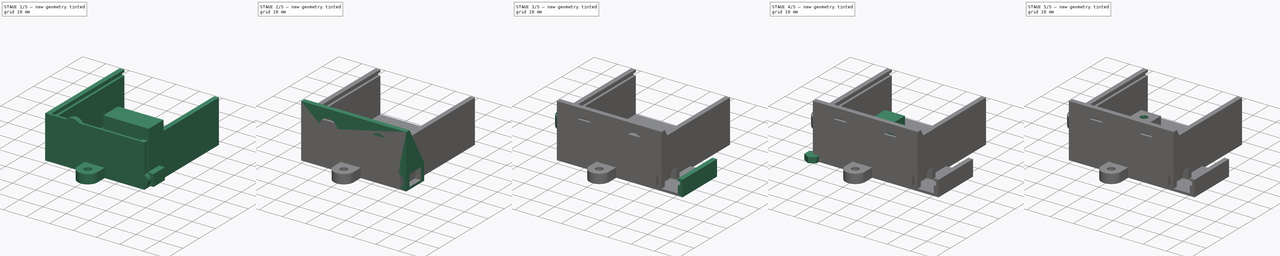
[diagram: build sequence overview — one tinted view per stage of 5, left to right]
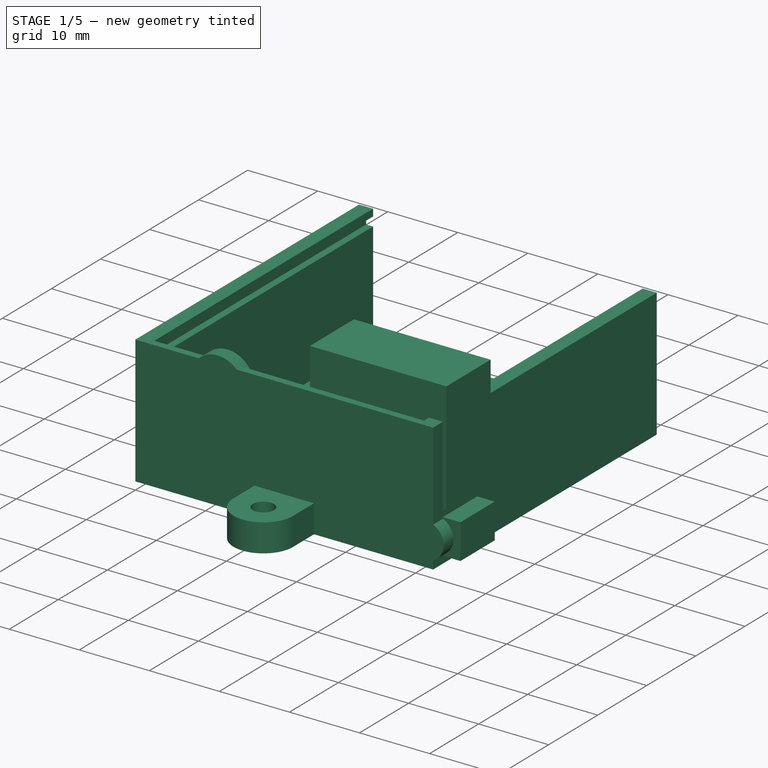
[diagram: stage 1 of 5 — iso view after this stage's code; geometry added in this stage tinted green]
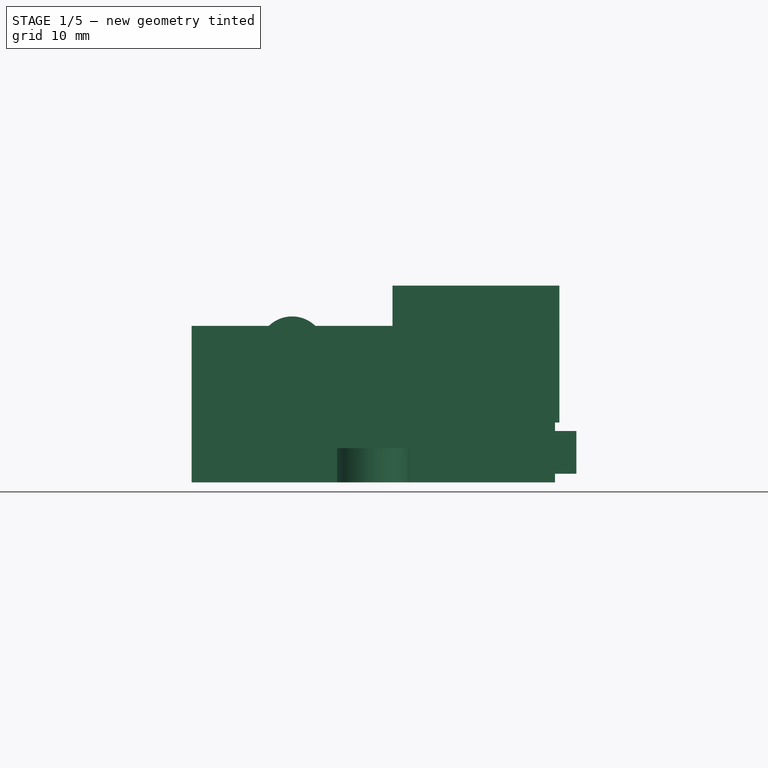
[diagram: stage 1 of 5 — front view after this stage's code; geometry added in this stage tinted green]
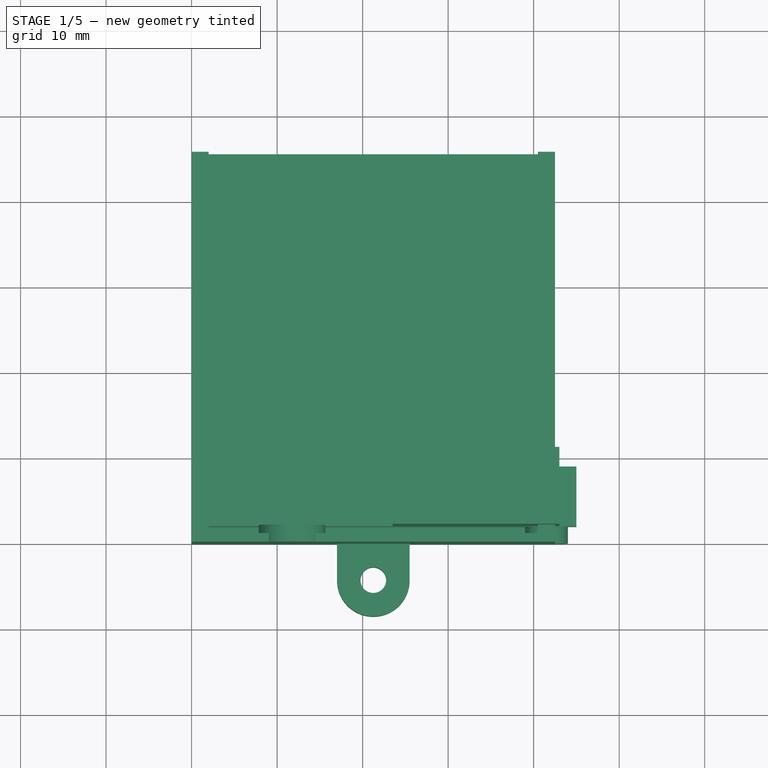
[diagram: stage 1 of 5 — top view after this stage's code; geometry added in this stage tinted green]
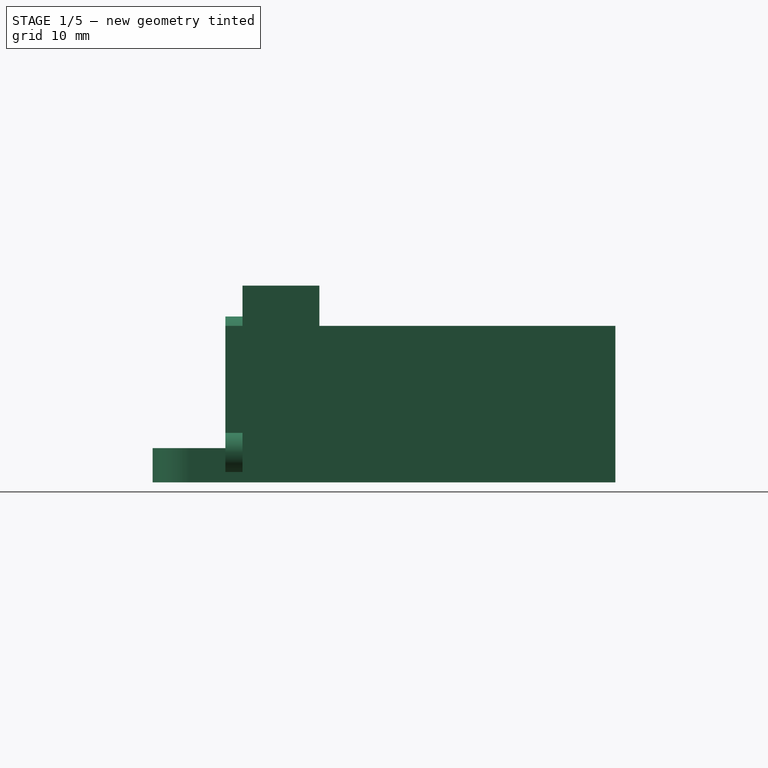
[diagram: stage 1 of 5 — right view after this stage's code; geometry added in this stage tinted green]
FCSTD DOCUMENT  (FreeCAD 0.21R33771 (Git))
Label: main_pcb
License: All rights reserved
LicenseURL: https://en.wikipedia.org/wiki/All_rights_reserved
objects: Part::Cut×29, Part::Box×18, Part::Cylinder×13, Sketcher::SketchObject×6, PartDesign::Pad×6, PartDesign::Body×6, Part::MultiFuse×3, Part::Fillet×2
note: 89 computed .brp shape members not serialized (recipe doc carries the construction recipe); baked Part::Feature solids carry a one-line shape summary decoded from their .brp

FEATURE [PartDesign::Body] Body005  label="body019"
  Group = -> [Sketch005,Pad005]
  Origin = -> Origin005
  Tip = -> Pad005
FEATURE [Part::Box] Box011  label="hole005"
  AttacherType = Attacher::AttachEngine3D
  Height = 5
  Length = 45
  Placement = pos=(0,2,1) rot=(0,0,1;0rad)
  Width = 7
FEATURE [Part::Box] Box012  label="hole006"
  AttacherType = Attacher::AttachEngine3D
  Height = 16
  Length = 19.5
  Placement = pos=(23.5,2,7) rot=(0,0,1;0rad)
  Width = 9
FEATURE [Part::Cylinder] Cylinder006  label="screw_hole006"
  Angle = 360
  AttacherType = Attacher::AttachEngine3D
  FirstAngle = 0
  Height = 2
  Placement = pos=(41.5,2,3.5) rot=(1,0,0;1.5708rad)
  Radius = 2.5
  SecondAngle = 0
FEATURE [Part::Cylinder] Cylinder010  label="screw_hole010"
  Angle = 360
  AttacherType = Attacher::AttachEngine3D
  FirstAngle = 0
  Height = 2
  Placement = pos=(11.75,2,15.5) rot=(1,0,0;1.5708rad)
  Radius = 3.9
  SecondAngle = 0
FEATURE [Part::Box] Box014  label="body028"
  AttacherType = Attacher::AttachEngine3D
  Height = 18.3
  Length = 42.5
  Width = 45.6
FEATURE [Part::Box] Box015  label="hole008"
  AttacherType = Attacher::AttachEngine3D
  Height = 18.3
  Length = 38.5
  Placement = pos=(2,1,1) rot=(0,0,1;0rad)
  Width = 44.6
FEATURE [Part::Cut] Cut026  label="body029"
  Base = -> Box014
  Tool = -> Box015
FEATURE [Part::Box] Box016  label="pdb_hole"
  AttacherType = Attacher::AttachEngine3D
  Height = 1.3
  Length = 40.5
  Placement = pos=(1,1,16) rot=(0,0,1;0rad)
  Width = 44.6
FEATURE [Part::Cut] Cut027  label="body030"
  Base = -> Cut026
  Tool = -> Box016
FEATURE [Part::Box] Box017  label="support002"
  AttacherType = Attacher::AttachEngine3D
  Height = 4
  Length = 8.5
  Width = 8.5
FEATURE [Part::Cylinder] Cylinder012  label="screw_hole012"
  Angle = 360
  AttacherType = Attacher::AttachEngine3D
  FirstAngle = 0
  Height = 4
  Placement = pos=(4.25,4.25,0) rot=(0,0,1;0rad)
  Radius = 1.5
  SecondAngle = 0
FEATURE [Part::Cut] Cut028  label="support003"
  Base = -> Box017
  Tool = -> Cylinder012
FEATURE [Part::Fillet] Fillet001  label="support004"
  Base = -> Cut028
  Edges = 2 edges r=4.24: [Edge1,Edge6]
  Placement = pos=(17,-8.5,0) rot=(0,0,1;0rad)
FEATURE [Part::MultiFuse] Fusion002  label="power_supply_support_v2"
  Shapes = -> [Cut027,Fillet001]
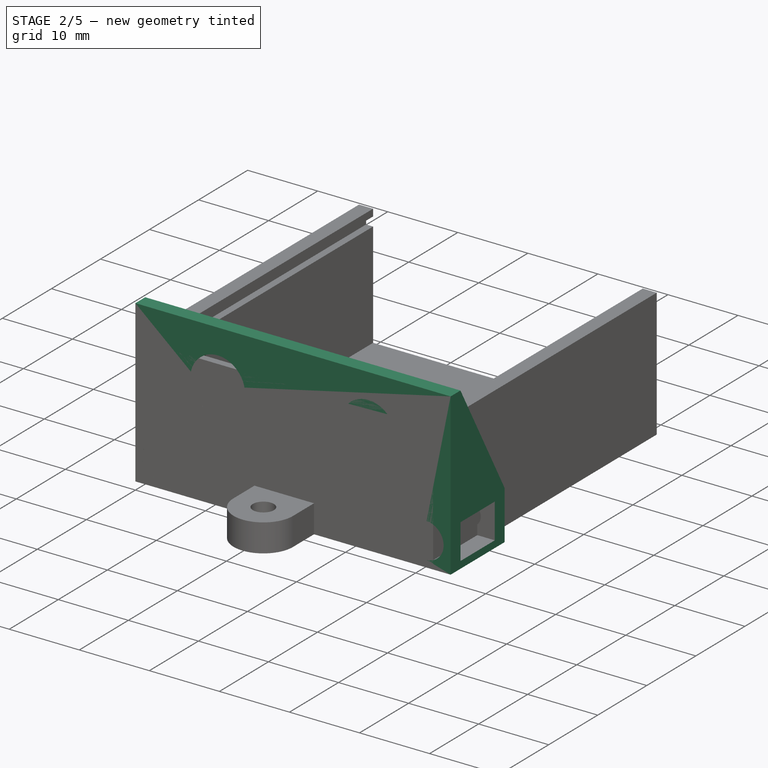
[diagram: stage 2 of 5 — iso view after this stage's code; geometry added in this stage tinted green]
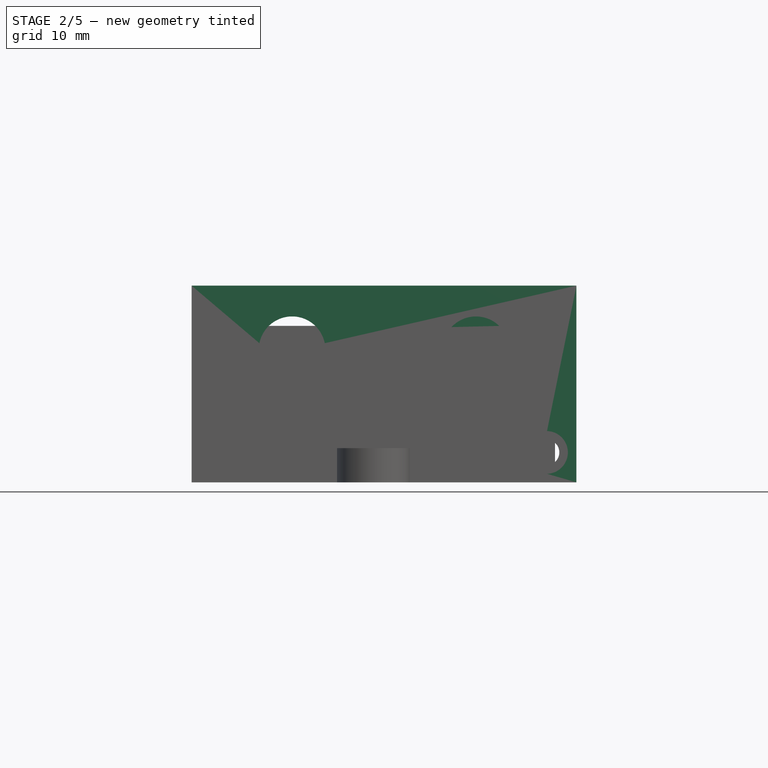
[diagram: stage 2 of 5 — front view after this stage's code; geometry added in this stage tinted green]
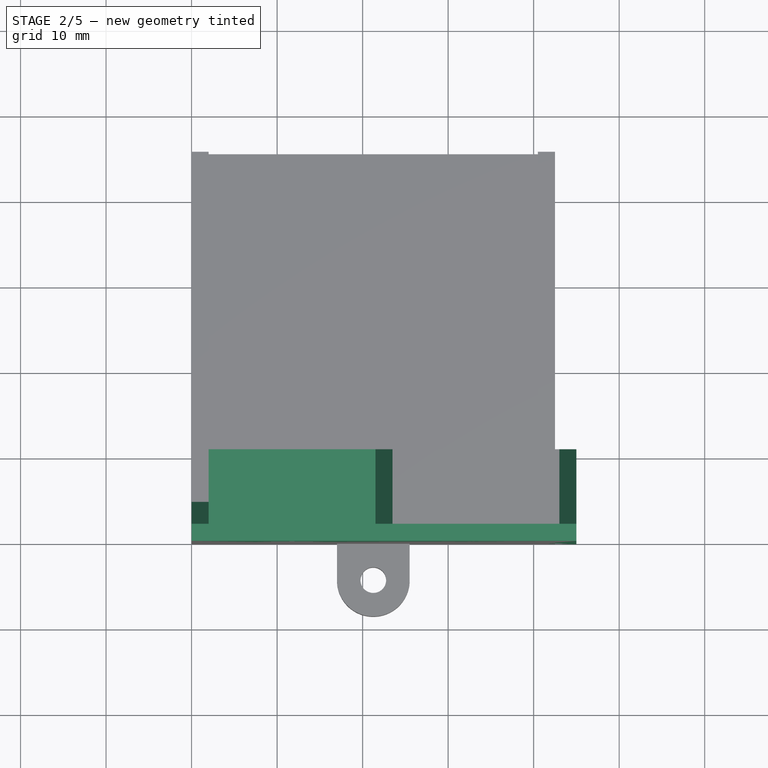
[diagram: stage 2 of 5 — top view after this stage's code; geometry added in this stage tinted green]
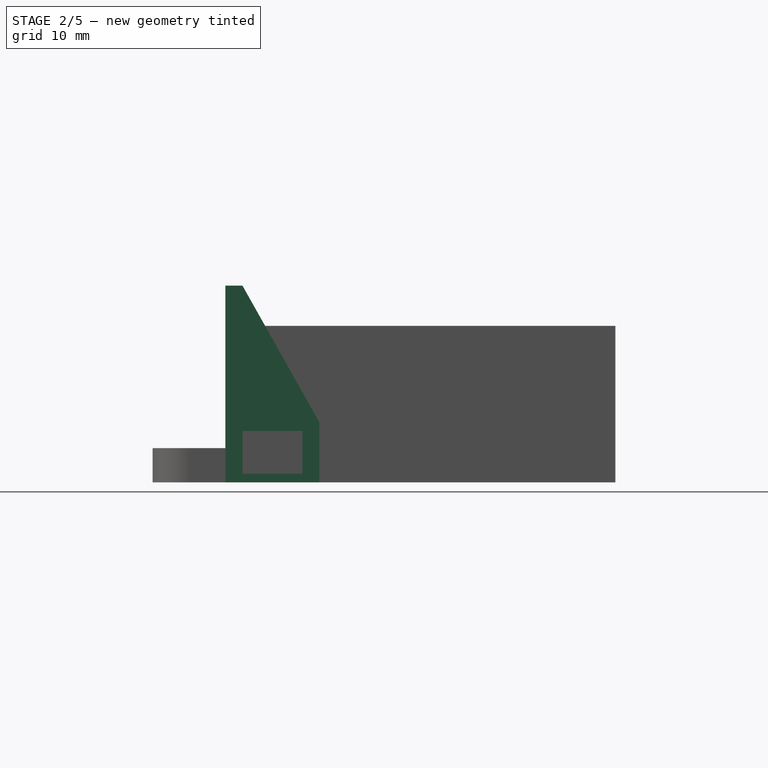
[diagram: stage 2 of 5 — right view after this stage's code; geometry added in this stage tinted green]
FEATURE [Sketcher::SketchObject] Sketch005
  FullyConstrained = true
  MapMode = 5
  Placement = pos=(0,0,0) rot=(0.57735,0.57735,0.57735;2.0944rad)
  Support = -> [YZ_Plane005]
  sketch-geometry (5):
    g0: LineSegment StartX=0 StartY=0 StartZ=0 EndX=11 EndY=0 EndZ=0
    g1: LineSegment StartX=11 StartY=0 StartZ=0 EndX=11 EndY=7 EndZ=0
    g2: LineSegment StartX=11 StartY=7 StartZ=0 EndX=2 EndY=23 EndZ=0
    g3: LineSegment StartX=2 StartY=23 StartZ=0 EndX=0 EndY=23 EndZ=0
    g4: LineSegment StartX=0 StartY=23 StartZ=0 EndX=0 EndY=0 EndZ=0
  constraints (14):
    c: Coincident(g-1,g0)
    c: PointOnObject(g0,g-1)
    c: Coincident(g0,g1)
    c: Vertical(g1)
    c: Coincident(g1,g2)
    c: Coincident(g2,g3)
    c: PointOnObject(g3,g-2)
    c: Horizontal(g3)
    c: Coincident(g3,g4)
    c: Coincident(g4,g0)
    c: DistanceX(g0,g0) = 11
    c: DistanceY(g1,g1) = 7
    c: DistanceY(g4,g4) = 23
    c: DistanceX(g3,g3) = 2
FEATURE [PartDesign::Pad] Pad005
  Direction = (1,-2e-16,3e-16)
  Length = 45
  Length2 = 10
  Placement = pos=(0,0,0) rot=(0.57735,0.57735,0.57735;2.0944rad)
  Profile = -> Sketch005
  ReferenceAxis = -> Sketch005 [N_Axis]
  Type = 0
FEATURE [Part::Cut] Cut017  label="body020"
  Base = -> Body005
  Tool = -> Box011
FEATURE [Part::Box] Box013  label="hole007"
  AttacherType = Attacher::AttachEngine3D
  Height = 16
  Length = 19.5
  Placement = pos=(2,2,7) rot=(0,0,1;0rad)
  Width = 9
FEATURE [Part::Cut] Cut018  label="body021"
  Base = -> Cut017
  Tool = -> Box012
FEATURE [Part::Cut] Cut019  label="body022"
  Base = -> Cut018
  Tool = -> Box013
FEATURE [Part::Cylinder] Cylinder007  label="screw_hole007"
  Angle = 360
  AttacherType = Attacher::AttachEngine3D
  FirstAngle = 0
  Height = 2
  Placement = pos=(3.5,11,3.5) rot=(1,0,0;1.5708rad)
  Radius = 1.5
  SecondAngle = 0
FEATURE [Part::Cylinder] Cylinder008  label="screw_hole008"
  Angle = 360
  AttacherType = Attacher::AttachEngine3D
  FirstAngle = 0
  Height = 2
  Placement = pos=(3.5,2,3.5) rot=(1,0,0;1.5708rad)
  Radius = 2.5
  SecondAngle = 0
FEATURE [Part::Cylinder] Cylinder009  label="screw_hole009"
  Angle = 360
  AttacherType = Attacher::AttachEngine3D
  FirstAngle = 0
  Height = 2
  Placement = pos=(41.5,11,3.5) rot=(1,0,0;1.5708rad)
  Radius = 1.5
  SecondAngle = 0
FEATURE [Part::Cut] Cut020  label="body023"
  Base = -> Cut019
  Tool = -> Cylinder006
FEATURE [Part::Cut] Cut021  label="body024"
  Base = -> Cut020
  Tool = -> Cylinder007
FEATURE [Part::Cut] Cut022  label="body025"
  Base = -> Cut021
  Tool = -> Cylinder008
FEATURE [Part::Cut] Cut023  label="body026"
  Base = -> Cut022
  Tool = -> Cylinder009
FEATURE [Part::Cylinder] Cylinder011  label="screw_hole011"
  Angle = 360
  AttacherType = Attacher::AttachEngine3D
  FirstAngle = 0
  Height = 2
  Placement = pos=(33.25,2,15.5) rot=(1,0,0;1.5708rad)
  Radius = 3.9
  SecondAngle = 0
FEATURE [Part::Cut] Cut024  label="body027"
  Base = -> Cut023
  Tool = -> Cylinder010
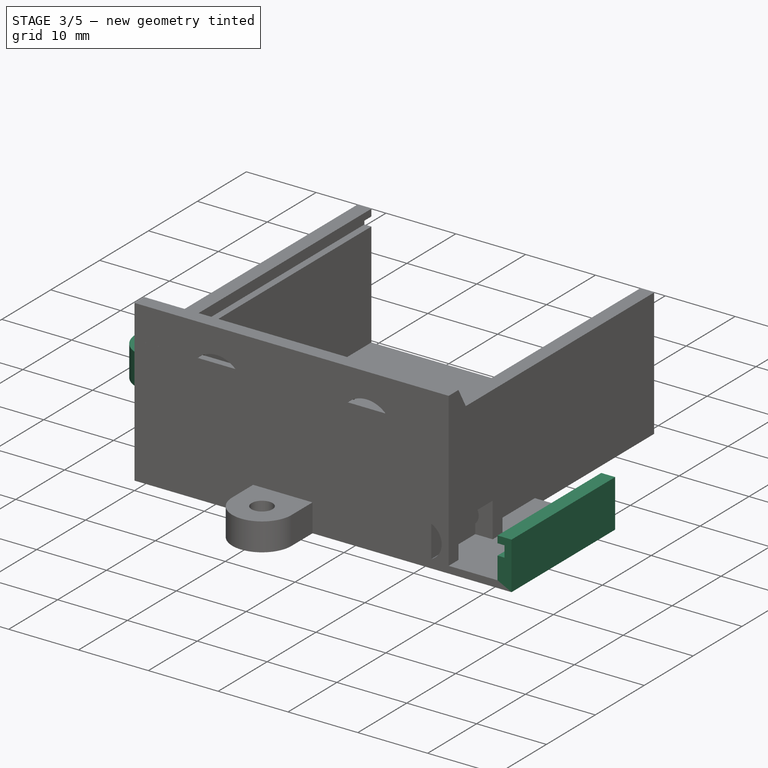
[diagram: stage 3 of 5 — iso view after this stage's code; geometry added in this stage tinted green]
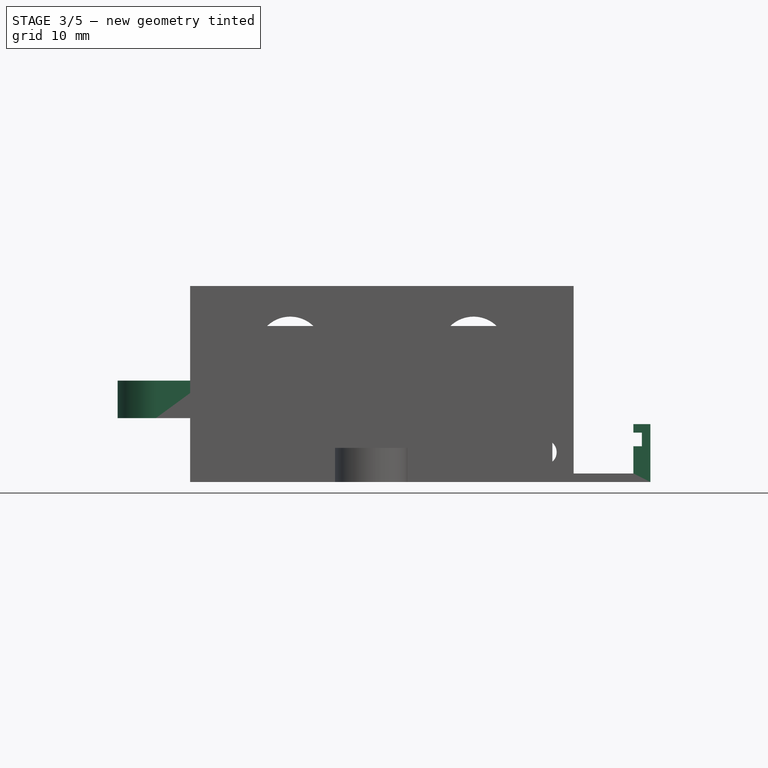
[diagram: stage 3 of 5 — front view after this stage's code; geometry added in this stage tinted green]
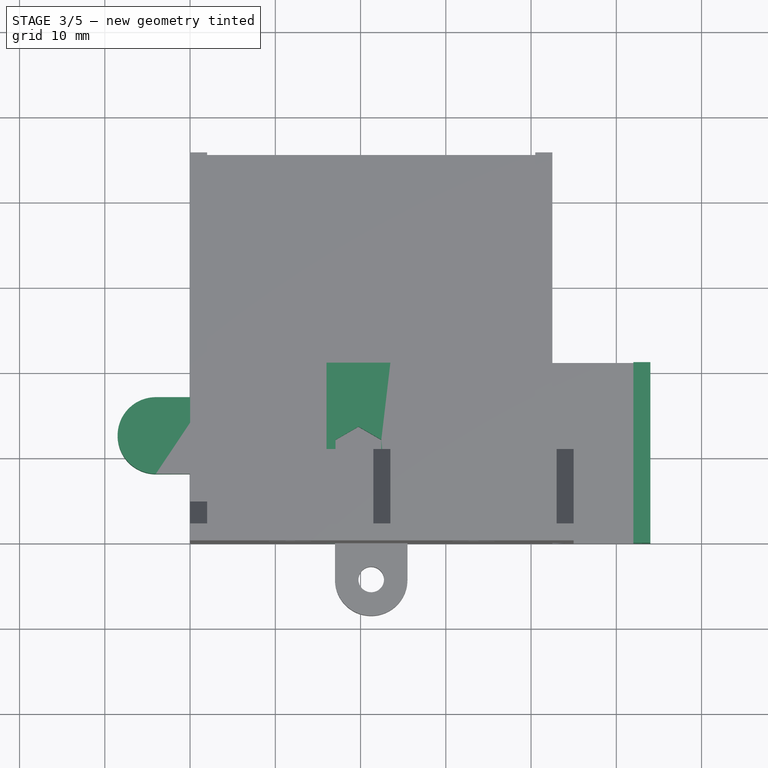
[diagram: stage 3 of 5 — top view after this stage's code; geometry added in this stage tinted green]
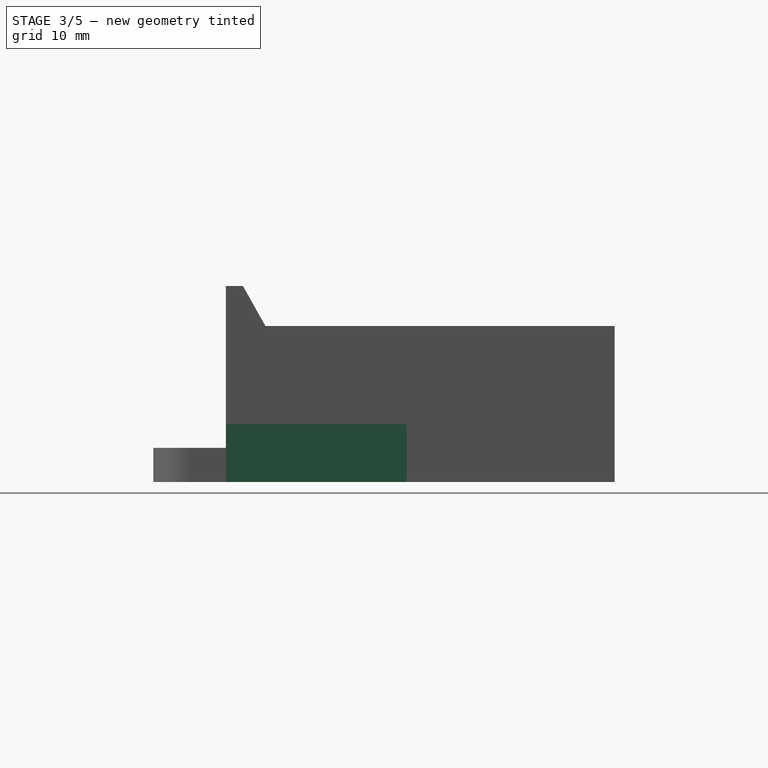
[diagram: stage 3 of 5 — right view after this stage's code; geometry added in this stage tinted green]
FEATURE [Part::Box] Box006  label="support"
  AttacherType = Attacher::AttachEngine3D
  Height = 4.4
  Length = 10.5
  Placement = pos=(-8.5,8,7.5) rot=(0,0,1;0rad)
  Width = 9
FEATURE [Part::Fillet] Fillet  label="rounded_support"
  Base = -> Box006
  Edges = 2 edges r=4.49: [Edge1,Edge3]
FEATURE [Part::Cylinder] Cylinder004  label="screw_hole004"
  Angle = 360
  AttacherType = Attacher::AttachEngine3D
  FirstAngle = 0
  Height = 4.4
  Placement = pos=(-4,12.5,7.5) rot=(0,0,1;0rad)
  Radius = 1.5
  SecondAngle = 0
FEATURE [Part::Box] Box007  label="body014"
  AttacherType = Attacher::AttachEngine3D
  Height = 6.8
  Length = 54
  Width = 21.2
FEATURE [Part::Box] Box008  label="hole003"
  AttacherType = Attacher::AttachEngine3D
  Height = 5.8
  Length = 50
  Placement = pos=(2,0,1) rot=(0,0,1;0rad)
  Width = 21.2
FEATURE [Part::Cut] Cut013  label="body015"
  Base = -> Box007
  Tool = -> Box008
FEATURE [Part::Box] Box009  label="hole004"
  AttacherType = Attacher::AttachEngine3D
  Height = 1.6
  Length = 52
  Placement = pos=(1,0,4.2) rot=(0,0,1;0rad)
  Width = 21.2
FEATURE [Part::Cut] Cut014  label="body016"
  Base = -> Cut013
  Tool = -> Box009
FEATURE [Part::Box] Box010  label="nut_support"
  AttacherType = Attacher::AttachEngine3D
  Height = 2.4
  Length = 7.5
  Placement = pos=(16,0,1) rot=(0,0,1;0rad)
  Width = 21.2
FEATURE [Part::MultiFuse] Fusion001  label="body017"
  Shapes = -> [Cut014,Box010]
FEATURE [Sketcher::SketchObject] Sketch004
  FullyConstrained = true
  MapMode = 5
  Support = -> [XY_Plane]
  sketch-geometry (7):
    g0: LineSegment StartX=0 StartY=3.1 StartZ=0 EndX=-2.68468 EndY=1.55 EndZ=0
    g1: LineSegment StartX=-2.68468 StartY=1.55 StartZ=0 EndX=-2.68468 EndY=-1.55 EndZ=0
    g2: LineSegment StartX=-2.68468 StartY=-1.55 StartZ=0 EndX=0 EndY=-3.1 EndZ=0
    g3: LineSegment StartX=0 StartY=-3.1 StartZ=0 EndX=2.68468 EndY=-1.55 EndZ=0
    g4: LineSegment StartX=2.68468 StartY=-1.55 StartZ=0 EndX=2.68468 EndY=1.55 EndZ=0
    g5: LineSegment StartX=2.68468 StartY=1.55 StartZ=0 EndX=0 EndY=3.1 EndZ=0
    g6: Circle CenterX=0 CenterY=0 CenterZ=0 NormalX=0 NormalY=0 NormalZ=1 AngleXU=0 Radius=3.1
  constraints (16):
    c: Coincident(g0,g1)
    c: Coincident(g1,g2)
    c: Coincident(g2,g3)
    c: Coincident(g3,g4)
    c: Coincident(g4,g5)
    c: Coincident(g5,g0)
    c: Equal(g0, g1-g5) x5
    c: PointOnObject(g0,g6)
    c: PointOnObject(g1,g6)
    c: PointOnObject(g2,g6)
    c: PointOnObject(g3,g6)
    c: PointOnObject(g4,g6)
    c: PointOnObject(g5,g6)
    c: Coincident(g6,g-1)
    c: PointOnObject(g5,g-2)
    c: DistanceY(g6,g0) = 3.1
FEATURE [PartDesign::Pad] Pad004
  Direction = (0,0,1)
  Length = 2.4
  Length2 = 10
  Profile = -> Sketch004
  ReferenceAxis = -> Sketch004 [N_Axis]
  Type = 0
FEATURE [PartDesign::Body] Body004  label="nut_hole004"
  Group = -> [Sketch004,Pad004]
  Origin = -> Origin
  Placement = pos=(19.75,10.6,1) rot=(0,0,1;0rad)
  Tip = -> Pad004
FEATURE [Part::Cut] Cut015  label="body018"
  Base = -> Fusion001
  Tool = -> Body004
FEATURE [Part::Cylinder] Cylinder005  label="screw_hole005"
  Angle = 360
  AttacherType = Attacher::AttachEngine3D
  FirstAngle = 0
  Height = 1
  Placement = pos=(19.75,10.6,0) rot=(0,0,1;0rad)
  Radius = 1.5
  SecondAngle = 0
FEATURE [Part::Cut] Cut016  label="voltage_sensor_support"
  Base = -> Cut015
  Tool = -> Cylinder005
FEATURE [Part::Cut] Cut025  label="wires_support"
  Base = -> Cut024
  Tool = -> Cylinder011
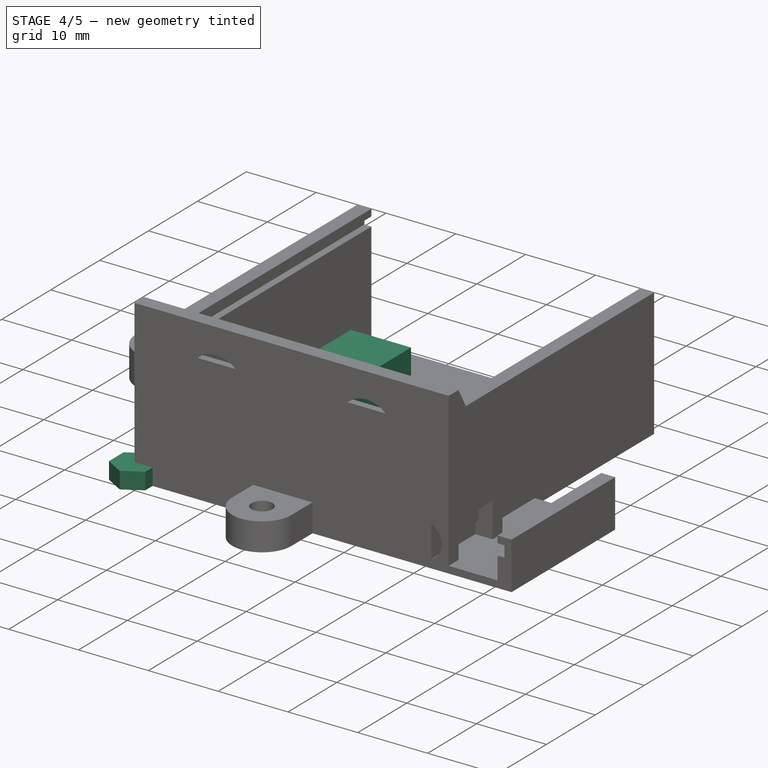
[diagram: stage 4 of 5 — iso view after this stage's code; geometry added in this stage tinted green]
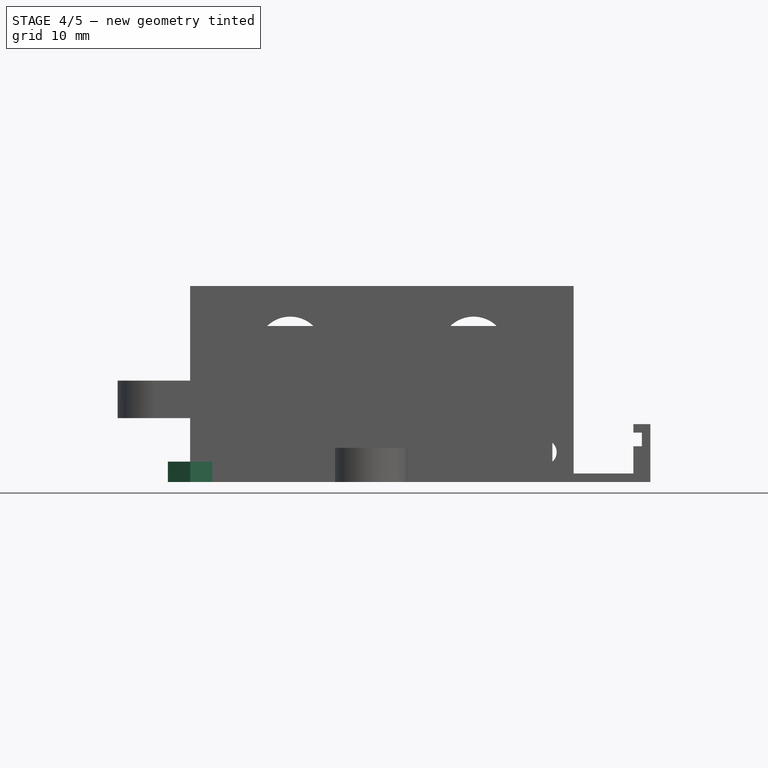
[diagram: stage 4 of 5 — front view after this stage's code; geometry added in this stage tinted green]
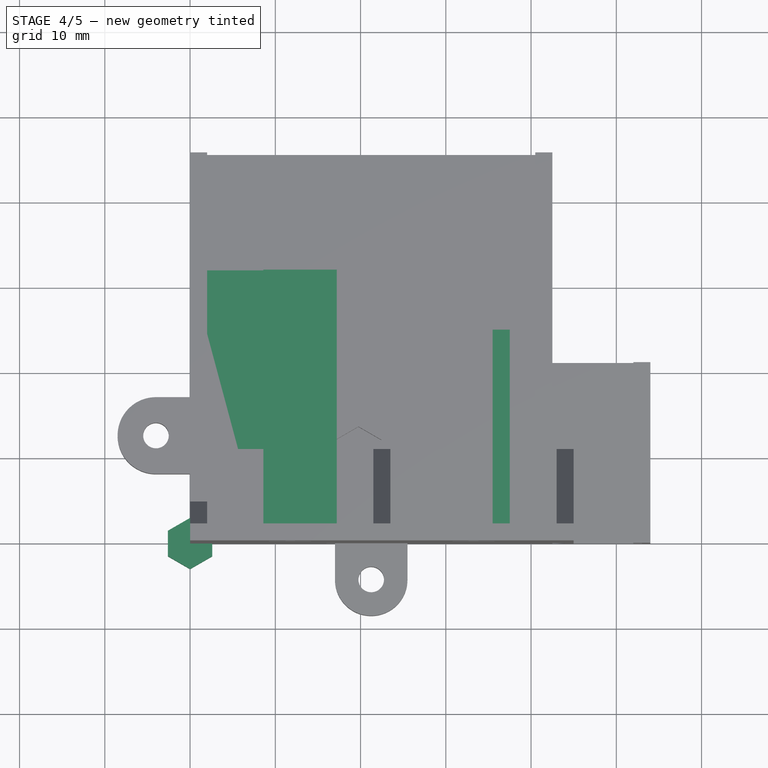
[diagram: stage 4 of 5 — top view after this stage's code; geometry added in this stage tinted green]
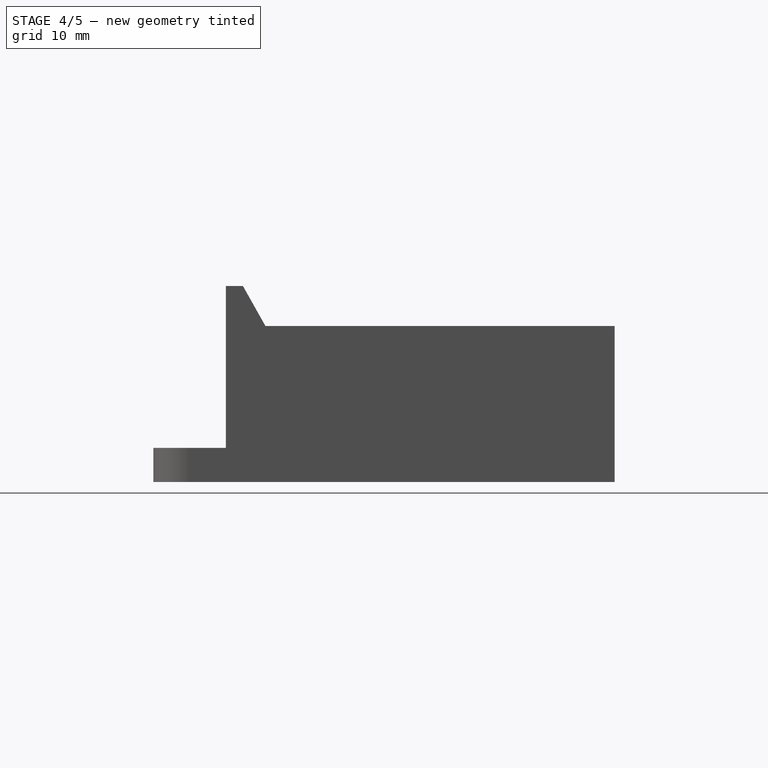
[diagram: stage 4 of 5 — right view after this stage's code; geometry added in this stage tinted green]
FEATURE [Part::Box] Box  label="body"
  AttacherType = Attacher::AttachEngine3D
  Height = 9.6
  Length = 17.2
  Width = 32
FEATURE [Part::Box] Box001  label="corner_hole"
  AttacherType = Attacher::AttachEngine3D
  Height = 3.6
  Length = 2.8
  Placement = pos=(14.4,0,0) rot=(0,0,1;0rad)
  Width = 5
FEATURE [Part::Cut] Cut  label="body001"
  Base = -> Box
  Tool = -> Box001
FEATURE [Part::Box] Box002  label="hole"
  AttacherType = Attacher::AttachEngine3D
  Height = 4.6
  Length = 8.6
  Placement = pos=(0,0,5) rot=(0,0,1;0rad)
  Width = 32
FEATURE [Part::Cut] Cut001  label="body002"
  Base = -> Cut
  Tool = -> Box002
FEATURE [Part::Cylinder] Cylinder  label="screw_hole"
  Angle = 360
  AttacherType = Attacher::AttachEngine3D
  FirstAngle = 0
  Height = 9.6
  Placement = pos=(12.9,4.3,0) rot=(0,0,1;0rad)
  Radius = 1.5
  SecondAngle = 0
FEATURE [Sketcher::SketchObject] Sketch
  FullyConstrained = true
  MapMode = 2
  sketch-geometry (7):
    g0: LineSegment StartX=0 StartY=3 StartZ=0 EndX=-2.59808 EndY=1.5 EndZ=0
    g1: LineSegment StartX=-2.59808 StartY=1.5 StartZ=0 EndX=-2.59808 EndY=-1.5 EndZ=0
    g2: LineSegment StartX=-2.59808 StartY=-1.5 StartZ=0 EndX=-3.286e-13 EndY=-3 EndZ=0
    g3: LineSegment StartX=-3.286e-13 StartY=-3 StartZ=0 EndX=2.59808 EndY=-1.5 EndZ=0
    g4: LineSegment StartX=2.59808 StartY=-1.5 StartZ=0 EndX=2.59808 EndY=1.5 EndZ=0
    g5: LineSegment StartX=2.59808 StartY=1.5 StartZ=0 EndX=0 EndY=3 EndZ=0
    g6: Circle CenterX=0 CenterY=0 CenterZ=0 NormalX=0 NormalY=0 NormalZ=1 AngleXU=0 Radius=3
  constraints (16):
    c: Coincident(g0,g1)
    c: Coincident(g1,g2)
    c: Coincident(g2,g3)
    c: Coincident(g3,g4)
    c: Coincident(g4,g5)
    c: Coincident(g5,g0)
    c: Equal(g0, g1-g5) x5
    c: PointOnObject(g0,g6)
    c: PointOnObject(g1,g6)
    c: PointOnObject(g2,g6)
    c: PointOnObject(g3,g6)
    c: PointOnObject(g4,g6)
    c: PointOnObject(g5,g6)
    c: Coincident(g6,g-1)
    c: PointOnObject(g5,g-2)
    c: DistanceY(g6,g0) = 3
FEATURE [PartDesign::Pad] Pad
  Direction = (0,0,1)
  Length = 2.4
  Length2 = 10
  Profile = -> Sketch
  ReferenceAxis = -> Sketch [N_Axis]
  Type = 0
FEATURE [Part::Box] Box003  label="hole001"
  AttacherType = Attacher::AttachEngine3D
  Height = 6.5
  Length = 33.5
  Placement = pos=(2,0,1) rot=(0,0,1;0rad)
  Width = 25
FEATURE [Part::Box] Box004  label="body011"
  AttacherType = Attacher::AttachEngine3D
  Height = 7.5
  Length = 37.5
  Width = 25
FEATURE [Part::Cut] Cut010  label="body012"
  Base = -> Box004
  Tool = -> Box003
FEATURE [Part::Box] Box005  label="hole002"
  AttacherType = Attacher::AttachEngine3D
  Height = 1.2
  Length = 35.5
  Placement = pos=(1,0,5) rot=(0,0,1;0rad)
  Width = 25
FEATURE [Part::Cut] Cut011  label="body013"
  Base = -> Cut010
  Tool = -> Box005
FEATURE [Part::Cut] Cut012  label="support001"
  Base = -> Fillet
  Tool = -> Cylinder004
FEATURE [Part::MultiFuse] Fusion  label="power_supply_support"
  Shapes = -> [Cut011,Cut012]
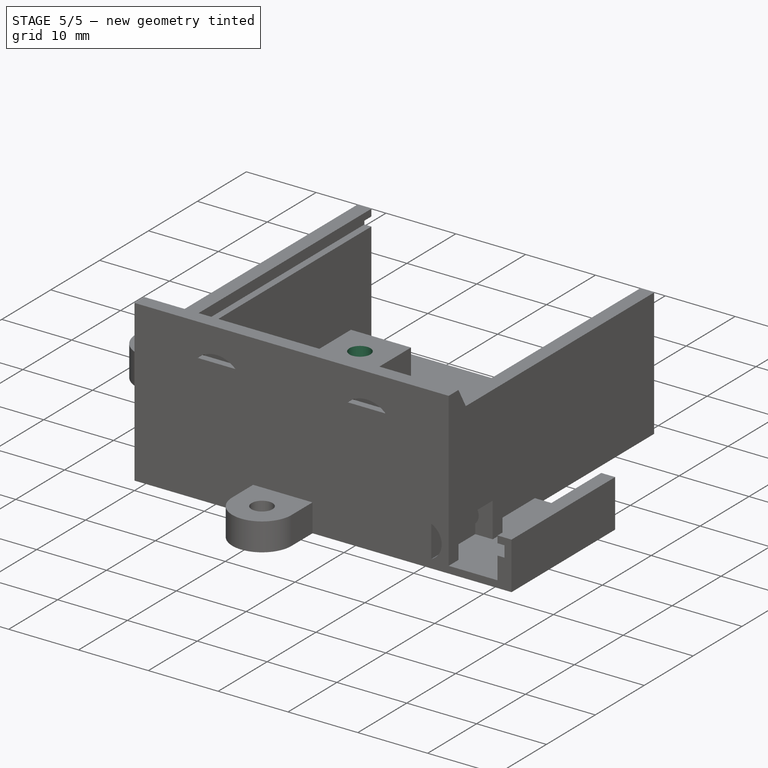
[diagram: stage 5 of 5 — iso view after this stage's code; geometry added in this stage tinted green]
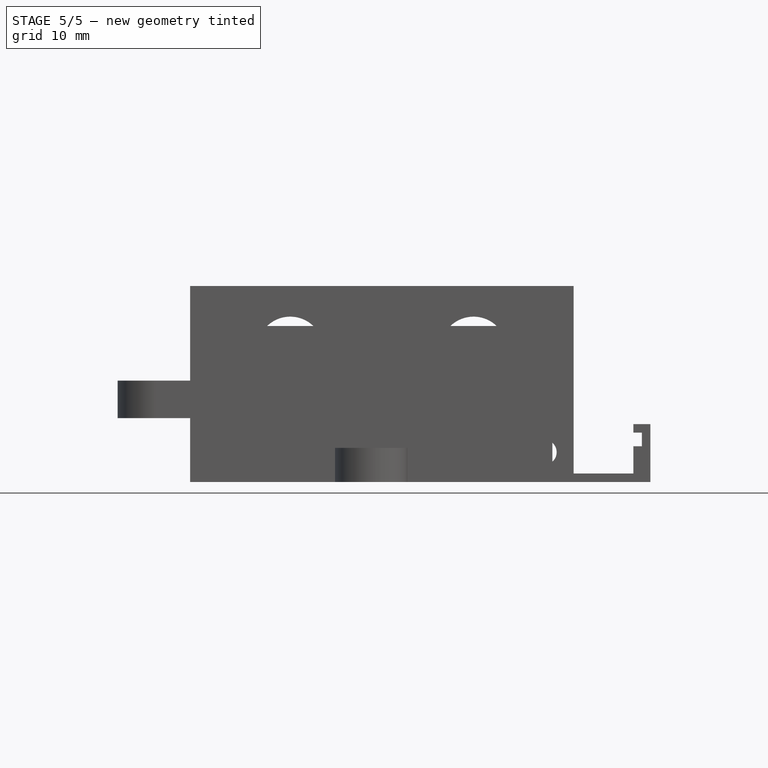
[diagram: stage 5 of 5 — front view after this stage's code; geometry added in this stage tinted green]
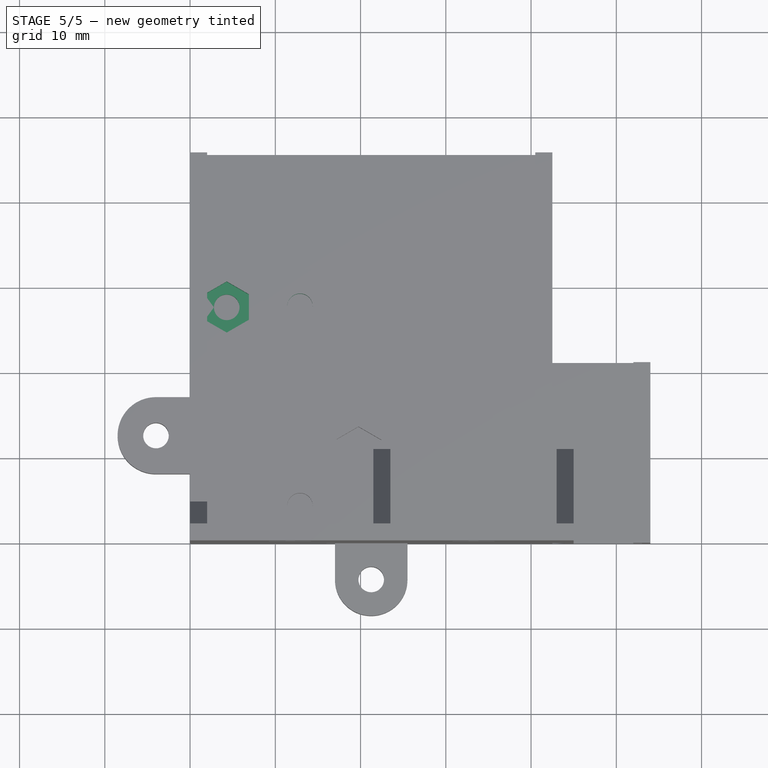
[diagram: stage 5 of 5 — top view after this stage's code; geometry added in this stage tinted green]
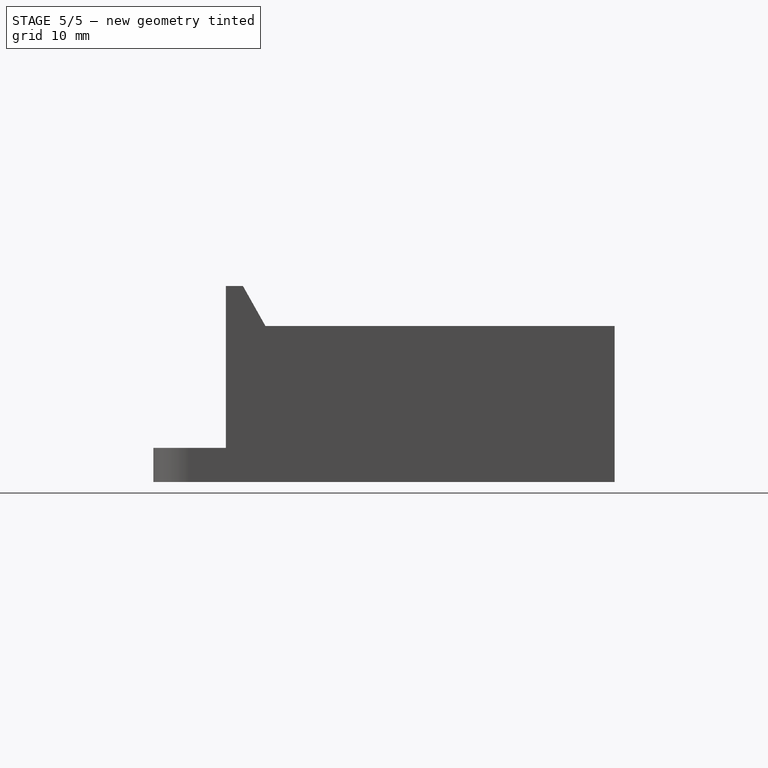
[diagram: stage 5 of 5 — right view after this stage's code; geometry added in this stage tinted green]
FEATURE [Part::Cylinder] Cylinder001  label="screw_hole001"
  Angle = 360
  AttacherType = Attacher::AttachEngine3D
  FirstAngle = 0
  Height = 9.6
  Placement = pos=(12.9,27.7,0) rot=(0,0,1;0rad)
  Radius = 1.5
  SecondAngle = 0
FEATURE [Part::Cylinder] Cylinder002  label="screw_hole002"
  Angle = 360
  AttacherType = Attacher::AttachEngine3D
  FirstAngle = 0
  Height = 5
  Placement = pos=(4.3,4.3,0) rot=(0,0,1;0rad)
  Radius = 1.5
  SecondAngle = 0
FEATURE [Part::Cylinder] Cylinder003  label="screw_hole003"
  Angle = 360
  AttacherType = Attacher::AttachEngine3D
  FirstAngle = 0
  Height = 5
  Placement = pos=(4.3,27.7,0) rot=(0,0,1;0rad)
  Radius = 1.5
  SecondAngle = 0
FEATURE [Part::Cut] Cut002  label="body003"
  Base = -> Cut001
  Tool = -> Cylinder
FEATURE [Part::Cut] Cut003  label="body004"
  Base = -> Cut002
  Tool = -> Cylinder001
FEATURE [Part::Cut] Cut004  label="body005"
  Base = -> Cut003
  Tool = -> Cylinder002
FEATURE [Part::Cut] Cut005  label="body006"
  Base = -> Cut004
  Tool = -> Cylinder003
FEATURE [PartDesign::Body] Body  label="nut_hole"
  Group = -> [Sketch,Pad]
  Origin = -> Origin001
  Placement = pos=(4.3,4.3,2.6) rot=(0,0,1;0rad)
  Tip = -> Pad
FEATURE [Sketcher::SketchObject] Sketch001
  FullyConstrained = true
  MapMode = 2
  sketch-geometry (7):
    g0: LineSegment StartX=0 StartY=3 StartZ=0 EndX=-2.59808 EndY=1.5 EndZ=0
    g1: LineSegment StartX=-2.59808 StartY=1.5 StartZ=0 EndX=-2.59808 EndY=-1.5 EndZ=0
    g2: LineSegment StartX=-2.59808 StartY=-1.5 StartZ=0 EndX=-3.286e-13 EndY=-3 EndZ=0
    g3: LineSegment StartX=-3.286e-13 StartY=-3 StartZ=0 EndX=2.59808 EndY=-1.5 EndZ=0
    g4: LineSegment StartX=2.59808 StartY=-1.5 StartZ=0 EndX=2.59808 EndY=1.5 EndZ=0
    g5: LineSegment StartX=2.59808 StartY=1.5 StartZ=0 EndX=0 EndY=3 EndZ=0
    g6: Circle CenterX=0 CenterY=0 CenterZ=0 NormalX=0 NormalY=0 NormalZ=1 AngleXU=0 Radius=3
  constraints (16):
    c: Coincident(g0,g1)
    c: Coincident(g1,g2)
    c: Coincident(g2,g3)
    c: Coincident(g3,g4)
    c: Coincident(g4,g5)
    c: Coincident(g5,g0)
    c: Equal(g0, g1-g5) x5
    c: PointOnObject(g0,g6)
    c: PointOnObject(g1,g6)
    c: PointOnObject(g2,g6)
    c: PointOnObject(g3,g6)
    c: PointOnObject(g4,g6)
    c: PointOnObject(g5,g6)
    c: Coincident(g6,g-1)
    c: PointOnObject(g5,g-2)
    c: DistanceY(g6,g0) = 3
FEATURE [PartDesign::Pad] Pad001
  Direction = (0,0,1)
  Length = 2.4
  Length2 = 10
  Profile = -> Sketch001
  ReferenceAxis = -> Sketch001 [N_Axis]
  Type = 0
FEATURE [PartDesign::Body] Body001  label="nut_hole001"
  Group = -> [Sketch001,Pad001]
  Origin = -> Origin002
  Placement = pos=(4.3,27.7,2.6) rot=(0,0,1;0rad)
  Tip = -> Pad001
FEATURE [Sketcher::SketchObject] Sketch002
  FullyConstrained = true
  MapMode = 2
  sketch-geometry (7):
    g0: LineSegment StartX=0 StartY=3 StartZ=0 EndX=-2.59808 EndY=1.5 EndZ=0
    g1: LineSegment StartX=-2.59808 StartY=1.5 StartZ=0 EndX=-2.59808 EndY=-1.5 EndZ=0
    g2: LineSegment StartX=-2.59808 StartY=-1.5 StartZ=0 EndX=-3.286e-13 EndY=-3 EndZ=0
    g3: LineSegment StartX=-3.286e-13 StartY=-3 StartZ=0 EndX=2.59808 EndY=-1.5 EndZ=0
    g4: LineSegment StartX=2.59808 StartY=-1.5 StartZ=0 EndX=2.59808 EndY=1.5 EndZ=0
    g5: LineSegment StartX=2.59808 StartY=1.5 StartZ=0 EndX=0 EndY=3 EndZ=0
    g6: Circle CenterX=0 CenterY=0 CenterZ=0 NormalX=0 NormalY=0 NormalZ=1 AngleXU=0 Radius=3
  constraints (16):
    c: Coincident(g0,g1)
    c: Coincident(g1,g2)
    c: Coincident(g2,g3)
    c: Coincident(g3,g4)
    c: Coincident(g4,g5)
    c: Coincident(g5,g0)
    c: Equal(g0, g1-g5) x5
    c: PointOnObject(g0,g6)
    c: PointOnObject(g1,g6)
    c: PointOnObject(g2,g6)
    c: PointOnObject(g3,g6)
    c: PointOnObject(g4,g6)
    c: PointOnObject(g5,g6)
    c: Coincident(g6,g-1)
    c: PointOnObject(g5,g-2)
    c: DistanceY(g6,g0) = 3
FEATURE [PartDesign::Pad] Pad002
  Direction = (0,0,1)
  Length = 7.2
  Length2 = 10
  Profile = -> Sketch002
  ReferenceAxis = -> Sketch002 [N_Axis]
  Type = 0
FEATURE [PartDesign::Body] Body002  label="nut_hole002"
  Group = -> [Sketch002,Pad002]
  Origin = -> Origin003
  Placement = pos=(12.9,27.7,0) rot=(0,0,1;0rad)
  Tip = -> Pad002
FEATURE [Sketcher::SketchObject] Sketch003
  FullyConstrained = true
  MapMode = 2
  sketch-geometry (7):
    g0: LineSegment StartX=0 StartY=3 StartZ=0 EndX=-2.59808 EndY=1.5 EndZ=0
    g1: LineSegment StartX=-2.59808 StartY=1.5 StartZ=0 EndX=-2.59808 EndY=-1.5 EndZ=0
    g2: LineSegment StartX=-2.59808 StartY=-1.5 StartZ=0 EndX=-3.286e-13 EndY=-3 EndZ=0
    g3: LineSegment StartX=-3.286e-13 StartY=-3 StartZ=0 EndX=2.59808 EndY=-1.5 EndZ=0
    g4: LineSegment StartX=2.59808 StartY=-1.5 StartZ=0 EndX=2.59808 EndY=1.5 EndZ=0
    g5: LineSegment StartX=2.59808 StartY=1.5 StartZ=0 EndX=0 EndY=3 EndZ=0
    g6: Circle CenterX=0 CenterY=0 CenterZ=0 NormalX=0 NormalY=0 NormalZ=1 AngleXU=0 Radius=3
  constraints (16):
    c: Coincident(g0,g1)
    c: Coincident(g1,g2)
    c: Coincident(g2,g3)
    c: Coincident(g3,g4)
    c: Coincident(g4,g5)
    c: Coincident(g5,g0)
    c: Equal(g0, g1-g5) x5
    c: PointOnObject(g0,g6)
    c: PointOnObject(g1,g6)
    c: PointOnObject(g2,g6)
    c: PointOnObject(g3,g6)
    c: PointOnObject(g4,g6)
    c: PointOnObject(g5,g6)
    c: Coincident(g6,g-1)
    c: PointOnObject(g5,g-2)
    c: DistanceY(g6,g0) = 3
FEATURE [PartDesign::Pad] Pad003
  Direction = (0,0,1)
  Length = 7.2
  Length2 = 10
  Profile = -> Sketch003
  ReferenceAxis = -> Sketch003 [N_Axis]
  Type = 0
FEATURE [PartDesign::Body] Body003  label="nut_hole003"
  Group = -> [Sketch003,Pad003]
  Origin = -> Origin004
  Placement = pos=(12.9,4.3,0) rot=(0,0,1;0rad)
  Tip = -> Pad003
FEATURE [Part::Cut] Cut006  label="body007"
  Base = -> Cut005
  Tool = -> Body
FEATURE [Part::Cut] Cut007  label="body008"
  Base = -> Cut006
  Tool = -> Body001
FEATURE [Part::Cut] Cut008  label="body009"
  Base = -> Cut007
  Tool = -> Body002
FEATURE [Part::Cut] Cut009  label="right_support"
  Base = -> Cut008
  Tool = -> Body003
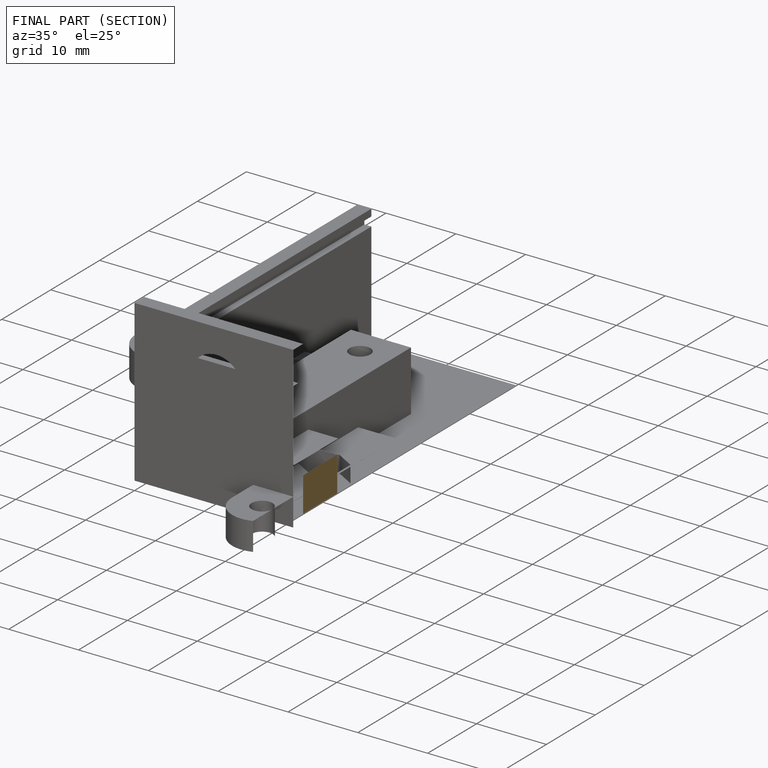
[diagram: finished part — half-section view (interior)]
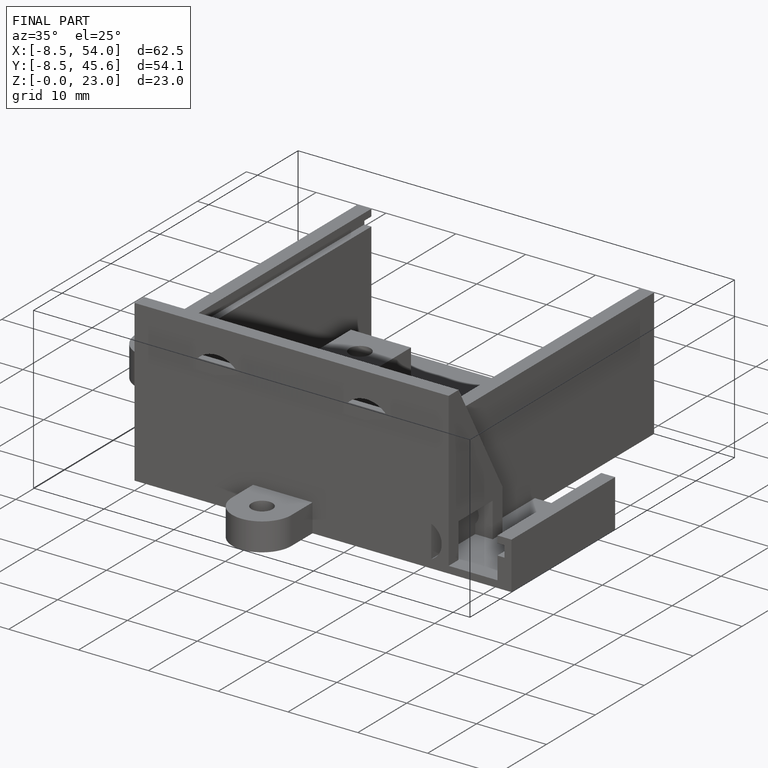
[diagram: finished part — iso view with bounding-box wireframe]
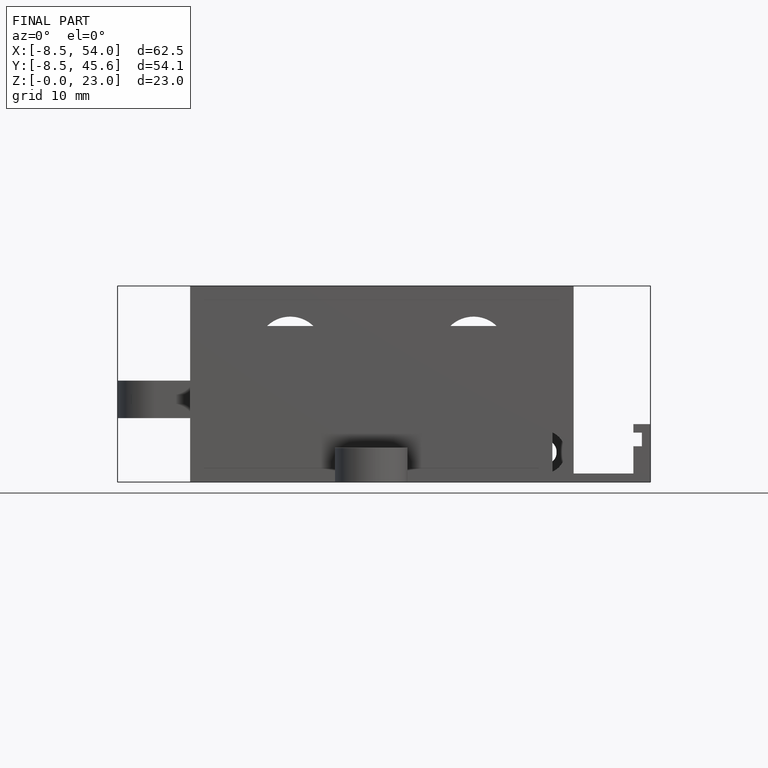
[diagram: finished part — front view with bounding-box wireframe]
